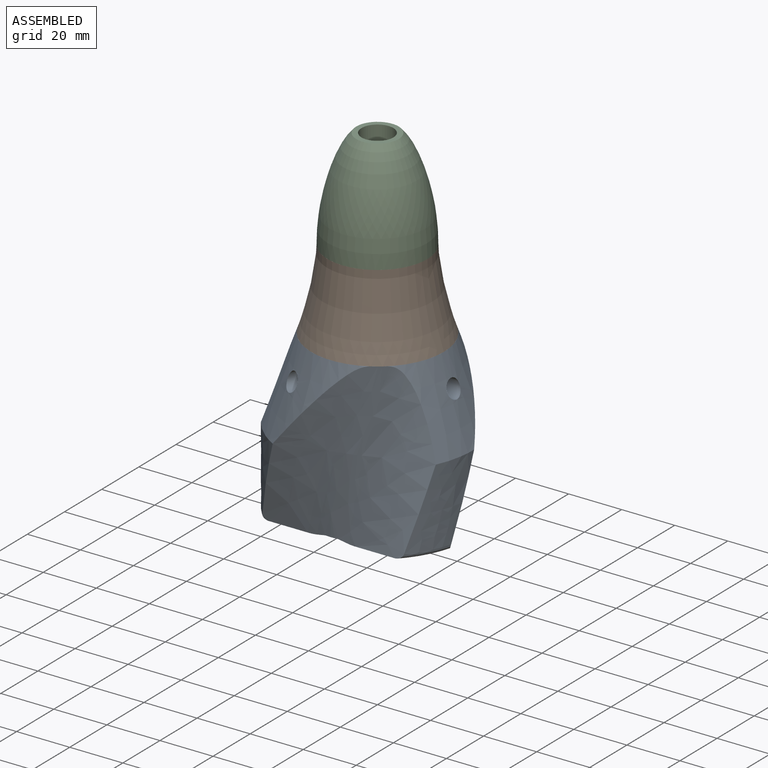
[diagram: assembled view]
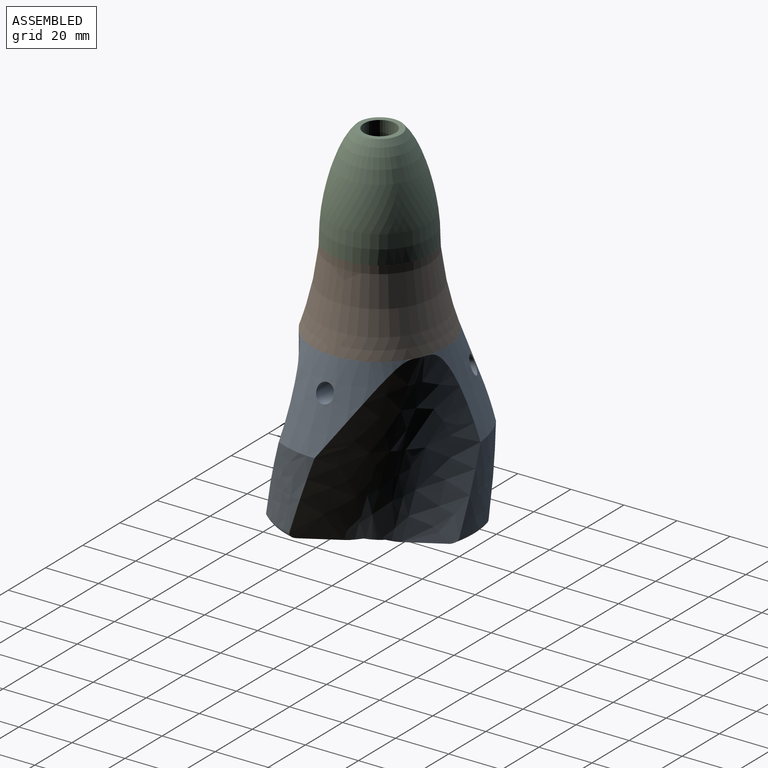
[diagram: assembled view, second angle]
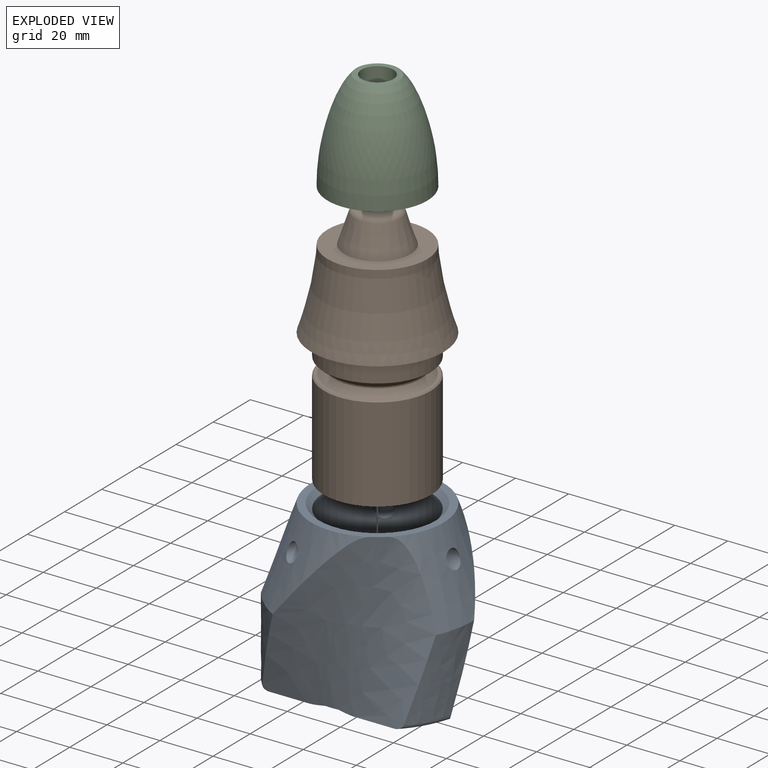
[diagram: exploded view]
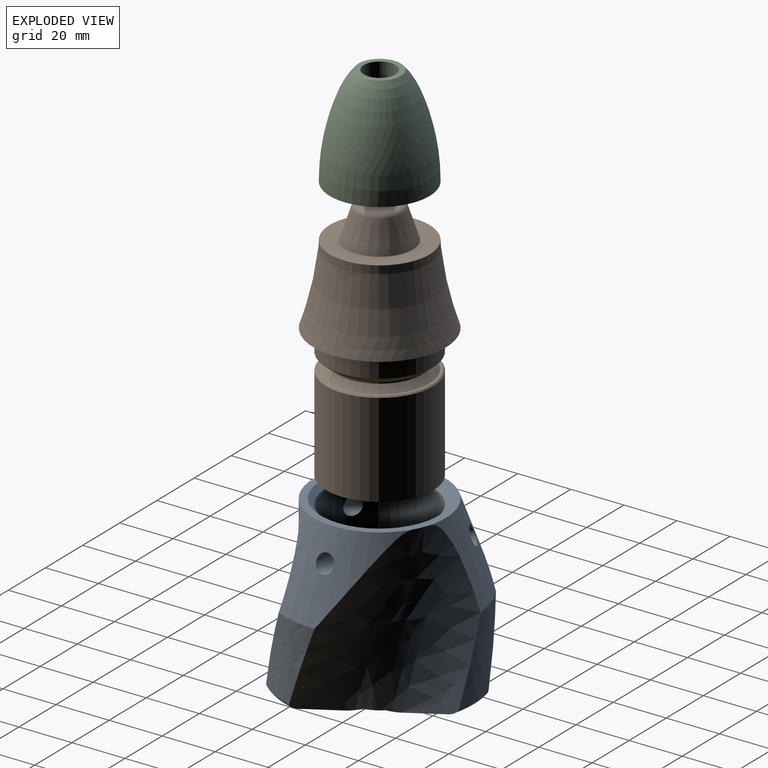
[diagram: exploded view, second angle]
ASSEMBLY  parts=3 mates=2
PART A: 59 faces, bbox 76.5x72.6x102.4 mm
  f0: cylinder r=20.2mm len=48mm, axis (0,0,1), area 5988.6mm2, adj f51,f54,f55,f56,f57
  f1: cone r=5.67mm half-angle=19.8deg, axis (0,0,-1), area 869.8mm2, adj f14,f32,f33,f34,f35,f47,f56
  f2: cone r=5.67mm half-angle=19.8deg, axis (0,0,-1), area 869.8mm2, adj f17,f37,f38,f39,f40,f47,f55
  f3: cone r=5.67mm half-angle=19.8deg, axis (0,0,-1), area 874.8mm2, adj f11,f27,f28,f29,f30,f47,f54
  f4: plane 50.05x50mm, normal (0,0,-1), area 1420.5mm2, adj f7,f8,f19,f44,f45,f46,f48,f49
  f5: plane 33.99x14.32mm, normal (0,0,-1), area 213.8mm2, adj f16,f18,f20,f21,f41,f46
  f6: plane 29.44x24.55mm, normal (0,0,-1), area 213.8mm2, adj f10,f12,f24,f25,f43,f45
  f7: bspline ~43.86x19.6mm, area 148.3mm2, adj f4,f23,f24,f31
  f8: bspline ~43.86x14.74mm, area 148.3mm2, adj f4,f21,f22,f36
  f9: plane 29.44x24.5mm, normal (0,0,-1), area 213.8mm2, adj f13,f15,f22,f23,f42,f44
  f10: bspline ~43.86x32.62mm, area 541.6mm2, adj f6,f11,f25,f28,f43
  f11: bspline ~43.86x23.02mm, area 468.9mm2, adj f3,f10,f12,f43
  f12: bspline ~43.86x32.74mm, area 538.4mm2, adj f6,f11,f24,f29,f43
  f13: bspline ~43.86x29.67mm, area 541.6mm2, adj f9,f14,f23,f33,f42
  f14: bspline ~43.86x30.01mm, area 468.9mm2, adj f1,f13,f15,f42
  f15: bspline ~43.86x28.16mm, area 538.4mm2, adj f9,f14,f22,f34,f42
  f16: bspline ~30.7x19.96mm, area 541.6mm2, adj f5,f17,f21,f38,f41
  f17: bspline ~43.86x30.62mm, area 468.9mm2, adj f2,f16,f18,f41
  f18: bspline ~43.86x28.55mm, area 538.4mm2, adj f5,f17,f20,f39,f41
  f19: bspline ~43.86x19.21mm, area 148.3mm2, adj f4,f20,f25,f26
  f20: bspline ~42.73x13.58mm, area 194.6mm2, adj f5,f18,f19,f40,f46
  f21: bspline ~40.16x11mm, area 194.3mm2, adj f5,f8,f16,f37,f46
  f22: bspline ~42.73x13.22mm, area 194.6mm2, adj f8,f9,f15,f35,f44
  f23: bspline ~40.16x13.92mm, area 194.3mm2, adj f7,f9,f13,f32,f44
  f24: bspline ~42.73x15.47mm, area 194.6mm2, adj f6,f7,f12,f30,f45
  f25: bspline ~40.16x14.39mm, area 194.3mm2, adj f6,f10,f19,f27,f45
  f26: bspline ~43.86x15.95mm, area 153.2mm2, adj f19,f27,f40,f47
  f27: bspline ~66.67x22.13mm, area 189.1mm2, adj f3,f25,f26,f28,f47
  f28: bspline ~27.47x24.44mm, area 242.5mm2, adj f3,f10,f27
  f29: bspline ~43.86x28mm, area 242.6mm2, adj f3,f12,f30
  f30: bspline ~30.56x13.43mm, area 189.2mm2, adj f3,f24,f29,f31,f47
  f31: bspline ~43.86x13.69mm, area 153.1mm2, adj f7,f30,f32,f47
  f32: bspline ~30.56x11.53mm, area 189.1mm2, adj f1,f23,f31,f33,f47
  f33: bspline ~27.47x19.53mm, area 242.5mm2, adj f1,f13,f32
  f34: bspline ~43.86x20.58mm, area 242.6mm2, adj f1,f15,f35
  f35: bspline ~30.56x10.61mm, area 189.2mm2, adj f1,f22,f34,f36,f47
  f36: bspline ~30.56x10.64mm, area 153.2mm2, adj f8,f35,f37,f47
  f37: bspline ~66.67x22.54mm, area 189.1mm2, adj f2,f21,f36,f38,f47
  f38: bspline ~27.47x22.79mm, area 242.5mm2, adj f2,f16,f37
  f39: bspline ~43.86x28.04mm, area 242.6mm2, adj f2,f18,f40
  f40: bspline ~66.67x23.05mm, area 189.2mm2, adj f2,f20,f26,f39,f47
  f41: bspline ~31.33x5.49mm, area 56.1mm2, adj f5,f16,f17,f18
  f42: bspline ~28.87x15.09mm, area 56.1mm2, adj f9,f13,f14,f15
  f43: bspline ~28.74x15.4mm, area 56.1mm2, adj f6,f10,f11,f12
  f44: torus R=26mm, axis (0,0,1), area 66.1mm2, adj f4,f9,f22,f23
  f45: torus R=26mm, axis (0,0,1), area 66.1mm2, adj f4,f6,f24,f25
  f46: torus R=26mm, axis (0,0,1), area 66.1mm2, adj f4,f5,f20,f21
  f47: plane 50.01x50.01mm, normal (0,0,1), area 415.3mm2, adj f1,f2,f3,f26,f27,f30,f31,f32
  f48: plane 6x2.86mm, normal (0.95,-0.3,0), area 18mm2, adj f4,f49,f53,f58
  f49: plane 7.44x6mm, normal (0.3,0.95,0), area 46.8mm2, adj f4,f48,f50,f58
  f50: plane 6x2.86mm, normal (-0.95,0.3,0), area 18mm2, adj f4,f49,f53,f58
  f51: plane 40.4x40.4mm, normal (0,0,1), area 961.4mm2, adj f0,f52
  f52: cylinder r=10.1mm len=20.2mm, axis (0,0,-1), area 1031.9mm2, adj f51,f58
  f53: cylinder r=12.9mm len=25.8mm, axis (0,0,-1), area 438.8mm2, adj f4,f48,f50,f58
  f54: cylinder r=3.32mm len=12.22mm, axis (0.51,0.86,0), area 200.6mm2, adj f0,f3
  f55: cylinder r=3.32mm len=11.12mm, axis (0.49,-0.87,0), area 187.6mm2, adj f0,f2
  f56: cylinder r=3.32mm len=9.62mm, axis (-1,0.01,0), area 196.3mm2, adj f0,f1
  f57: cone r=20.2mm half-angle=45deg, axis (0,0,1), area 376.8mm2, adj f0,f47
  f58: plane 28.66x25.8mm, normal (0,0,-1), area 222.6mm2, adj f48,f49,f50,f52,f53
PART B: 26 faces, bbox 50x50x92.6 mm
  f0: cylinder r=20.2mm len=40.4mm, axis (0,0,1), area 763.1mm2, adj f21,f22
  f1: plane 50x50mm, normal (0,0,-1), area 415.2mm2, adj f2,f22
  f2: revolved ~50x50mm, area 4095mm2, adj f1,f3
  f3: plane 37.64x37.64mm, normal (0,0,1), area 621.9mm2, adj f2,f4
  f4: cone r=12.5mm half-angle=18.1deg, axis (0,0,-1), area 791.1mm2, adj f3,f23
  f5: plane 13.85x13.85mm, normal (0,0,1), area 131.7mm2, adj f6,f23
  f6: cylinder r=2.46mm len=20mm, axis (0,0,1), area 309.1mm2, adj f5,f7
  f7: plane 4.92x4.92mm, normal (0,0,1), area 19mm2, adj f6
  f8: plane 39.4x39.4mm, normal (0,0,-1), area 120.6mm2, adj f21,f25
  f9: cylinder r=16.2mm len=32.4mm, axis (0,0,-1), area 50.9mm2, adj f24,f25
  f10: plane 39.4x39.4mm, normal (0,0,1), area 120.6mm2, adj f20,f24
  f11: plane 34.87x30.2mm, normal (0,0,-1), area 789.8mm2, adj f12,f13,f14,f15,f16,f17
  f12: plane 30x15.1mm, normal (0.87,0.5,0), area 523.1mm2, adj f11,f13,f17,f18
  f13: plane 30x15.1mm, normal (0.87,-0.5,0), area 523.1mm2, adj f11,f12,f14,f18
  f14: plane 30x17.44mm, normal (0,-1,0), area 523.1mm2, adj f11,f13,f15,f18
  f15: plane 30x15.1mm, normal (-0.87,-0.5,0), area 523.1mm2, adj f11,f14,f16,f18
  f16: plane 30x15.1mm, normal (-0.87,0.5,0), area 523.1mm2, adj f11,f15,f17,f18
  f17: plane 30x17.44mm, normal (0,1,0), area 523.1mm2, adj f11,f12,f16,f18
  f18: plane 40.4x40.4mm, normal (0,0,-1), area 492mm2, adj f12,f13,f14,f15,f16,f17,f19
  f19: cylinder r=20.2mm len=40.4mm, axis (0,0,1), area 4504.1mm2, adj f18,f20
  f20: cone r=20.2mm half-angle=45deg, axis (0,0,-1), area 88.6mm2, adj f10,f19
  f21: cone r=19.7mm half-angle=45deg, axis (0,0,1), area 88.6mm2, adj f0,f8
  f22: cone r=22.2mm half-angle=45deg, axis (0,0,1), area 376.8mm2, adj f0,f1
  f23: torus R=6.93mm, axis (0,0,-1), area 126.5mm2, adj f4,f5
  f24: cone r=18.7mm half-angle=45deg, axis (0,0,-1), area 387.6mm2, adj f9,f10
  f25: cone r=16.2mm half-angle=45deg, axis (0,0,1), area 387.6mm2, adj f8,f9
PART C: 7 faces, bbox 37.6x37.6x38 mm
  f0: cone r=12.5mm half-angle=18.1deg, axis (0,0,-1), area 869.5mm2, adj f1,f6
  f1: plane 37.64x37.64mm, normal (0,0,-1), area 621.9mm2, adj f0,f2
  f2: revolved ~38x37.64mm, area 3896.7mm2, adj f1,f3
  f3: plane 16x16mm, normal (0,0,1), area 88mm2, adj f2,f4
  f4: cylinder r=6mm len=12mm, axis (0,0,1), area 452.4mm2, adj f3,f5
  f5: plane 12x12mm, normal (0,0,1), area 113.1mm2, adj f4
  f6: plane 16.75x16.75mm, normal (0,0,-1), area 220.4mm2, adj f0
PLACE A at identity fixed
PLACE B t=(0,0,61.26)mm
PLACE C t=(0,0,91.26)mm
MATE fastened B.f0 <-> C.f0  axis (0,0,1) through (0,0,91.26)mm
MATE slider B.f0 <-> A.f0  axis (0,0,1) through (0,0,59.26)mm
